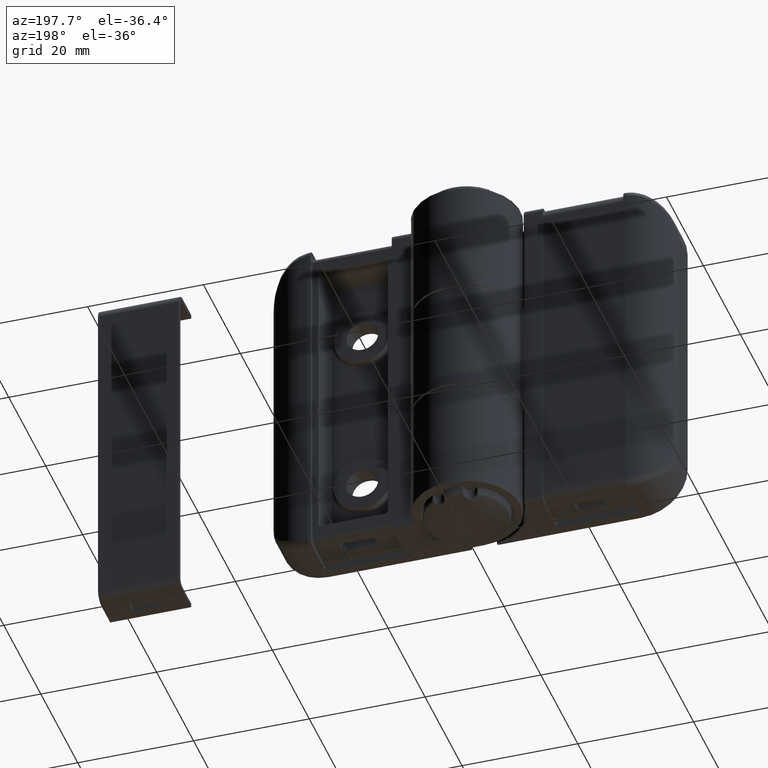
[diagram: clean part render]
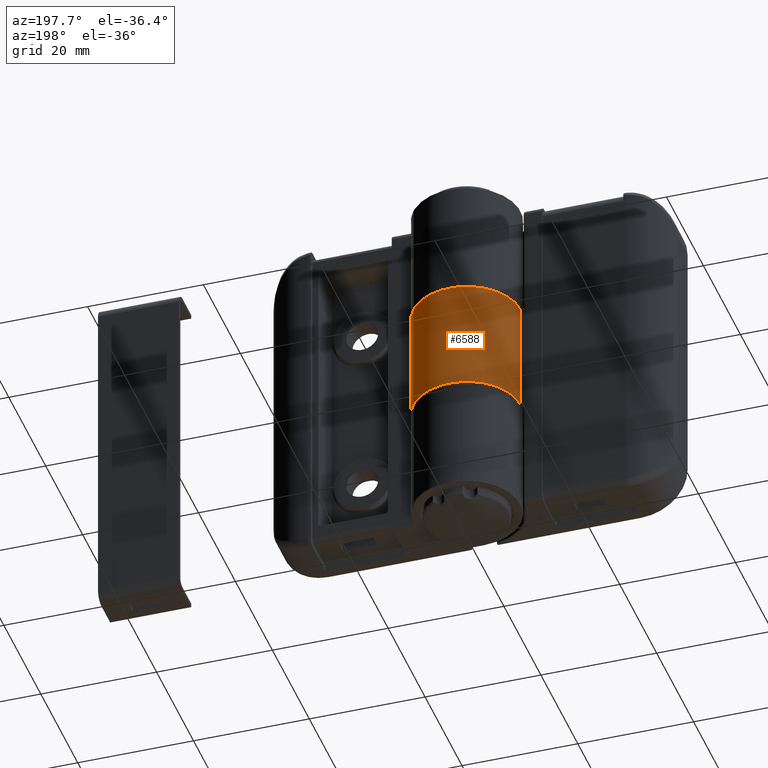
[diagram: same view with one face highlighted and labeled with its STEP entity id]
A machine part, auxiliary view. The second image highlights one B-rep face of the part: STEP entity #6588.
In plain terms, the highlighted cylindrical surface (partial cylindrical patch) has radius 9.25 mm, axis along (0, 0, -1).
Its self-contained STEP definition (entity closure, byte-faithful):
#570=LINE('',#9774,#986);
#571=LINE('',#9776,#987);
#986=VECTOR('',#7820,19.4);
#987=VECTOR('',#7823,19.4);
#1405=CYLINDRICAL_SURFACE('',#7021,9.25);
#1536=FACE_OUTER_BOUND('',#1949,.T.);
#1949=EDGE_LOOP('',(#4516,#4517,#4518,#4519));
#2415=CIRCLE('',#7003,9.25);
#2425=CIRCLE('',#7017,9.25);
#2804=VERTEX_POINT('',#9732);
#2805=VERTEX_POINT('',#9734);
#2814=VERTEX_POINT('',#9758);
#2817=VERTEX_POINT('',#9763);
#3471=EDGE_CURVE('',#2804,#2805,#2415,.T.);
#3486=EDGE_CURVE('',#2817,#2814,#2425,.T.);
#3491=EDGE_CURVE('',#2804,#2814,#570,.T.);
#3492=EDGE_CURVE('',#2805,#2817,#571,.T.);
#4516=ORIENTED_EDGE('',*,*,#3471,.F.);
#4517=ORIENTED_EDGE('',*,*,#3491,.T.);
#4518=ORIENTED_EDGE('',*,*,#3486,.F.);
#4519=ORIENTED_EDGE('',*,*,#3492,.F.);
#6588=ADVANCED_FACE('',(#1536),#1405,.T.);
#7003=AXIS2_PLACEMENT_3D('',#9735,#7777,#7778);
#7017=AXIS2_PLACEMENT_3D('',#9765,#7809,#7810);
#7021=AXIS2_PLACEMENT_3D('',#9775,#7821,#7822);
#7777=DIRECTION('center_axis',(0.,0.,-1.));
#7778=DIRECTION('ref_axis',(-0.707106781186546,0.707106781186549,0.));
#7809=DIRECTION('center_axis',(0.,0.,1.));
#7810=DIRECTION('ref_axis',(-0.707106781186546,0.707106781186549,0.));
#7820=DIRECTION('',(0.,0.,1.));
#7821=DIRECTION('center_axis',(0.,0.,1.));
#7822=DIRECTION('ref_axis',(-0.707106781186547,0.707106781186549,0.));
#7823=DIRECTION('',(0.,0.,1.));
#9732=CARTESIAN_POINT('',(-2.606459406511E-14,-9.25,20.3));
#9734=CARTESIAN_POINT('',(9.25,0.,20.3));
#9735=CARTESIAN_POINT('Origin',(0.,0.,20.3));
#9758=CARTESIAN_POINT('',(-2.606459406511E-14,-9.25,39.7));
#9763=CARTESIAN_POINT('',(9.25,0.,39.7));
#9765=CARTESIAN_POINT('Origin',(0.,0.,39.7));
#9774=CARTESIAN_POINT('',(-2.606459406511E-14,-9.25,20.2));
#9775=CARTESIAN_POINT('Origin',(0.,0.,0.));
#9776=CARTESIAN_POINT('',(9.25,0.,20.2));